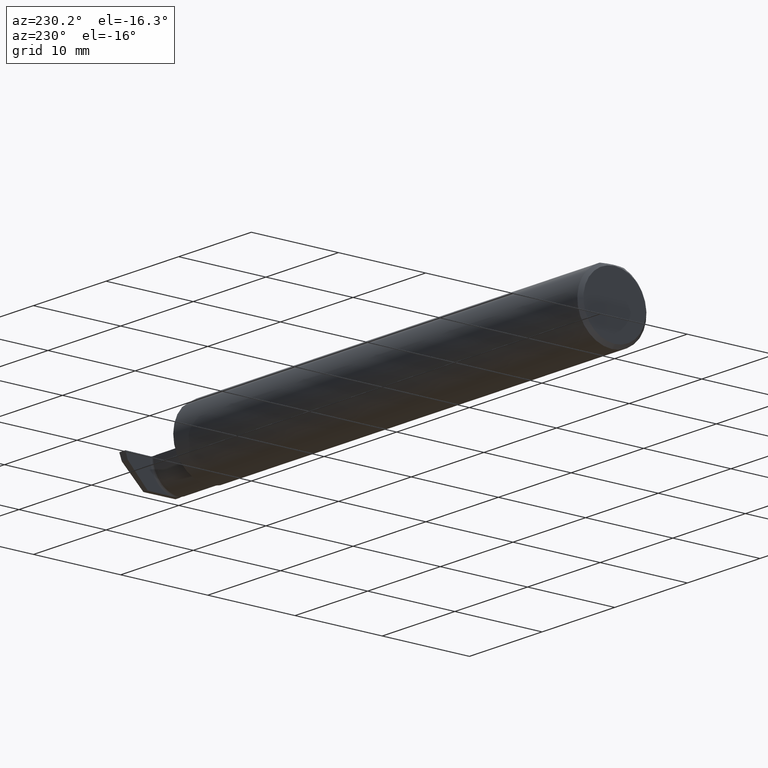
[diagram: clean part render]
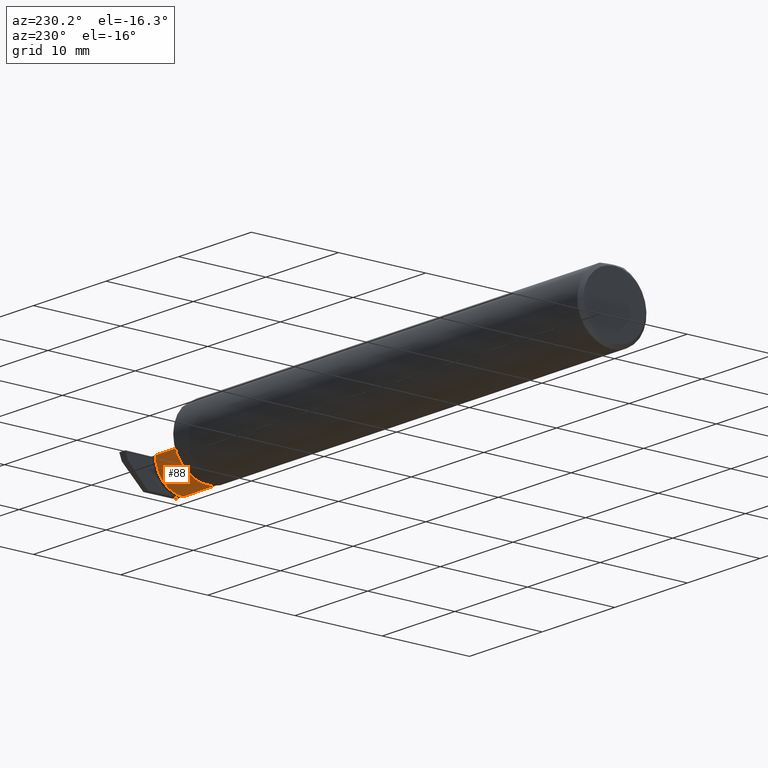
[diagram: same view with one face highlighted and labeled with its STEP entity id]
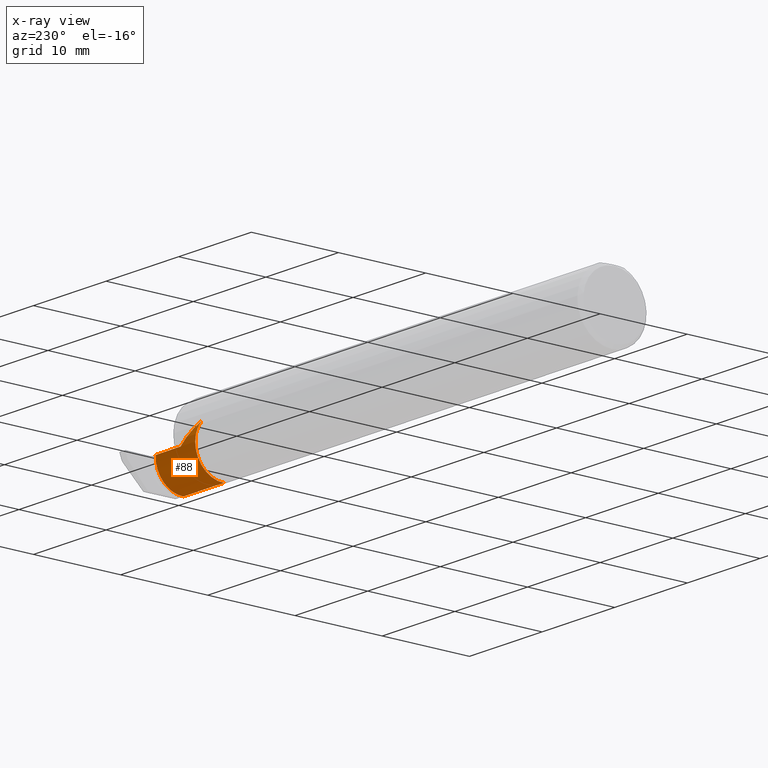
[diagram: x-ray of the same camera — body ghosted, the highlighted face saturated]
A machine part, auxiliary view. The second image highlights one B-rep face of the part: STEP entity #88.
The next image is the same camera in x-ray: the body ghosted, the highlighted face saturated — about 0% of this face is hidden behind the body in this view.
In plain terms, the highlighted cylindrical surface (edge-blend (fillet) strip) has radius 3.175 mm, axis along (-1, -0, -0).
Its self-contained STEP definition (entity closure, byte-faithful):
#2 = LINE ( 'NONE', #831, #24 ) ;
#5 = CARTESIAN_POINT ( 'NONE',  ( 2.448498965941531491, -0.01493724066993090509, -0.1009718465047490243 ) ) ;
#8 = CARTESIAN_POINT ( 'NONE',  ( 2.445776141068292109, 0.03171328752852226041, -0.03315338681973637597 ) ) ;
#12 = CARTESIAN_POINT ( 'NONE',  ( 2.448837385881482920, -0.02909995065259360705, -0.1099791922880739570 ) ) ;
#16 = ORIENTED_EDGE ( 'NONE', *, *, #626, .T. ) ;
#18 = CARTESIAN_POINT ( 'NONE',  ( 2.229999999999999982, -0.08909999999999998477, 0.000000000000000000 ) ) ;
#21 = ORIENTED_EDGE ( 'NONE', *, *, #47, .T. ) ;
#24 = VECTOR ( 'NONE', #388, 39.37007874015748143 ) ;
#47 = EDGE_CURVE ( 'NONE', #635, #667, #960, .T. ) ;
#73 = VERTEX_POINT ( 'NONE', #203 ) ;
#81 = CARTESIAN_POINT ( 'NONE',  ( 2.447531026734656834, 0.009123470280108486596, -0.07776829230570728169 ) ) ;
#88 = ADVANCED_FACE ( 'NONE', ( #824 ), #583, .T. ) ;
#152 = CARTESIAN_POINT ( 'NONE',  ( 2.447020893934631403, 0.01865736036231804493, -0.06390703161436005197 ) ) ;
#159 = CARTESIAN_POINT ( 'NONE',  ( 2.444500000000001450, 0.03590000000000012625, 7.028497217831607559E-18 ) ) ;
#203 = CARTESIAN_POINT ( 'NONE',  ( 2.310000000000000053, 0.03589999999999998748, 2.326828918379970872E-17 ) ) ;
#211 = EDGE_CURVE ( 'NONE', #73, #248, #2, .T. ) ;
#215 = CIRCLE ( 'NONE', #422, 0.1250000000000000000 ) ;
#219 = DIRECTION ( 'NONE',  ( -1.000000000000000000, -0.000000000000000000, -0.000000000000000000 ) ) ;
#230 = CARTESIAN_POINT ( 'NONE',  ( 2.449304098947340691, -0.06034218865720754332, -0.1219336379112670593 ) ) ;
#234 = CARTESIAN_POINT ( 'NONE',  ( 2.445136310684305592, 0.03505389268000243946, -0.01675733968954794262 ) ) ;
#237 = EDGE_CURVE ( 'NONE', #248, #635, #975, .T. ) ;
#248 = VERTEX_POINT ( 'NONE', #159 ) ;
#287 = CARTESIAN_POINT ( 'NONE',  ( 2.229999999999999982, 0.006946863561492249567, 0.08000000000000061229 ) ) ;
#314 = CARTESIAN_POINT ( 'NONE',  ( 2.449434354160715532, -0.07682770084877786620, -0.1246764389972962600 ) ) ;
#331 = DIRECTION ( 'NONE',  ( 0.000000000000000000, 0.000000000000000000, 1.000000000000000000 ) ) ;
#385 = CARTESIAN_POINT ( 'NONE',  ( 2.447779145727865924, 0.003680222544234076996, -0.08417898503812877575 ) ) ;
#386 = ORIENTED_EDGE ( 'NONE', *, *, #237, .T. ) ;
#388 = DIRECTION ( 'NONE',  ( 1.000000000000000000, 0.000000000000000000, 0.000000000000000000 ) ) ;
#392 = ORIENTED_EDGE ( 'NONE', *, *, #211, .T. ) ;
#401 = VERTEX_POINT ( 'NONE', #287 ) ;
#422 = AXIS2_PLACEMENT_3D ( 'NONE', #18, #691, #331 ) ;
#512 = CARTESIAN_POINT ( 'NONE',  ( 2.205000000000000071, -0.08909999999999998477, 0.000000000000000000 ) ) ;
#515 = EDGE_CURVE ( 'NONE', #401, #667, #215, .T. ) ;
#519 = DIRECTION ( 'NONE',  ( 0.000000000000000000, 0.000000000000000000, 1.000000000000000000 ) ) ;
#521 = CARTESIAN_POINT ( 'NONE',  ( 2.310000000000000053, 0.03589999999999998748, 2.326828918379970872E-17 ) ) ;
#536 = CARTESIAN_POINT ( 'NONE',  ( 2.449421300275415270, -0.09360841750841744635, -0.1249186702281520206 ) ) ;
#543 = ORIENTED_EDGE ( 'NONE', *, *, #515, .F. ) ;
#568 = EDGE_LOOP ( 'NONE', ( #392, #386, #21, #543, #16 ) ) ;
#583 = CYLINDRICAL_SURFACE ( 'NONE', #815, 0.1250000000000000000 ) ;
#595 = CARTESIAN_POINT ( 'NONE',  ( 2.280465398849123471, 0.03590000000000002217, 0.02953460115087711002 ) ) ;
#605 = CARTESIAN_POINT ( 'NONE',  ( 2.448961966437530613, -0.03654066513033785157, -0.1137198193083682474 ) ) ;
#626 = EDGE_CURVE ( 'NONE', #401, #73, #879, .T. ) ;
#635 = VERTEX_POINT ( 'NONE', #961 ) ;
#660 = CARTESIAN_POINT ( 'NONE',  ( 2.229999999999999982, 0.006946863561492249567, 0.08000000000000061229 ) ) ;
#663 = DIRECTION ( 'NONE',  ( -1.000000000000000000, -0.000000000000000000, -0.000000000000000000 ) ) ;
#667 = VERTEX_POINT ( 'NONE', #738 ) ;
#680 = CARTESIAN_POINT ( 'NONE',  ( 2.448264865136521085, -0.008299181475720359899, -0.09573661234456513902 ) ) ;
#688 = CARTESIAN_POINT ( 'NONE',  ( 2.449440112604805986, -0.08516785807978712042, -0.1252232969572020516 ) ) ;
#691 = DIRECTION ( 'NONE',  ( -1.000000000000000000, -0.000000000000000000, -0.000000000000000000 ) ) ;
#716 = VECTOR ( 'NONE', #219, 39.37007874015748143 ) ;
#736 = CARTESIAN_POINT ( 'NONE',  ( 2.345749999999999780, -0.09360841750841747411, -0.1249186702281520206 ) ) ;
#738 = CARTESIAN_POINT ( 'NONE',  ( 2.229999999999999982, -0.09360841750841744635, -0.1249186702281520206 ) ) ;
#756 = CARTESIAN_POINT ( 'NONE',  ( 2.446745737123007025, 0.02266124484975925307, -0.05660255671004706113 ) ) ;
#759 = CARTESIAN_POINT ( 'NONE',  ( 2.444827625057827358, 0.03589999999669384045, -0.008439552832545643007 ) ) ;
#815 = AXIS2_PLACEMENT_3D ( 'NONE', #512, #663, #519 ) ;
#824 = FACE_OUTER_BOUND ( 'NONE', #568, .T. ) ;
#831 = CARTESIAN_POINT ( 'NONE',  ( 2.205000000000000071, 0.03590000000000001523, 3.612708057484693206E-17 ) ) ;
#840 = CARTESIAN_POINT ( 'NONE',  ( 2.446113912918959521, 0.02918506494743467947, -0.04126825277211392667 ) ) ;
#844 = CARTESIAN_POINT ( 'NONE',  ( 2.444500000000001450, 0.03590000000000012625, 7.028497217831607559E-18 ) ) ;
#879 =( BOUNDED_CURVE ( )  B_SPLINE_CURVE ( 3, ( #660, #903, #595, #521 ),
 .UNSPECIFIED., .F., .F. ) 
 B_SPLINE_CURVE_WITH_KNOTS ( ( 4, 4 ),
 ( 0.8762980611683343080, 1.570796326794896558 ),
 .UNSPECIFIED. ) 
 CURVE ( )  GEOMETRIC_REPRESENTATION_ITEM ( )  RATIONAL_B_SPLINE_CURVE ( ( 1.000000000000000000, 0.9602082824955224805, 0.9602082824955224805, 1.000000000000000000 ) ) 
 REPRESENTATION_ITEM ( '' )  );
#903 = CARTESIAN_POINT ( 'NONE',  ( 2.252693646456652043, 0.02584900829805373418, 0.05730635354334956411 ) ) ;
#910 = CARTESIAN_POINT ( 'NONE',  ( 2.449193969110767366, -0.05212837990975097840, -0.1196987063145274754 ) ) ;
#960 = LINE ( 'NONE', #736, #716 ) ;
#961 = CARTESIAN_POINT ( 'NONE',  ( 2.449421300275415270, -0.09360841750841744635, -0.1249186702281520206 ) ) ;
#975 = B_SPLINE_CURVE_WITH_KNOTS ( 'NONE', 3,
 ( #844, #759, #234, #8, #840, #756, #152, #81, #385, #680, #5, #12, #605, #910, #230, #314, #688, #536 ),
 .UNSPECIFIED., .F., .F.,
 ( 4, 2, 2, 2, 2, 2, 2, 2, 4 ),
 ( 0.000000000000000000, 0.0006369471515757464328, 0.001273894303151492866, 0.001910841454727239081, 0.002547788606302985297, 0.003184735757878731296, 0.003821682909454476428, 0.004458630061030222427, 0.005095577212605967993 ),
 .UNSPECIFIED. ) ;